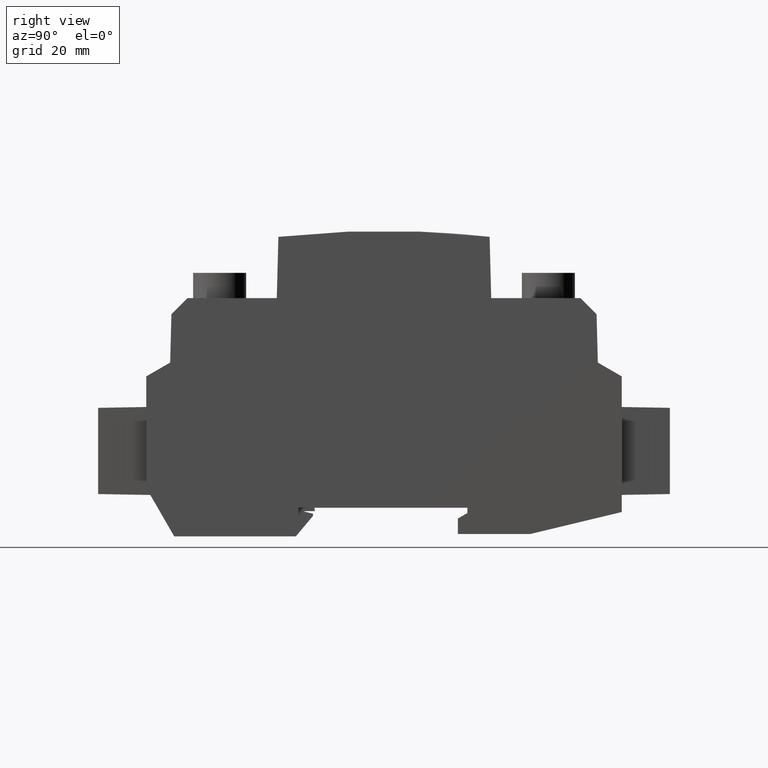
[diagram: clean part render]
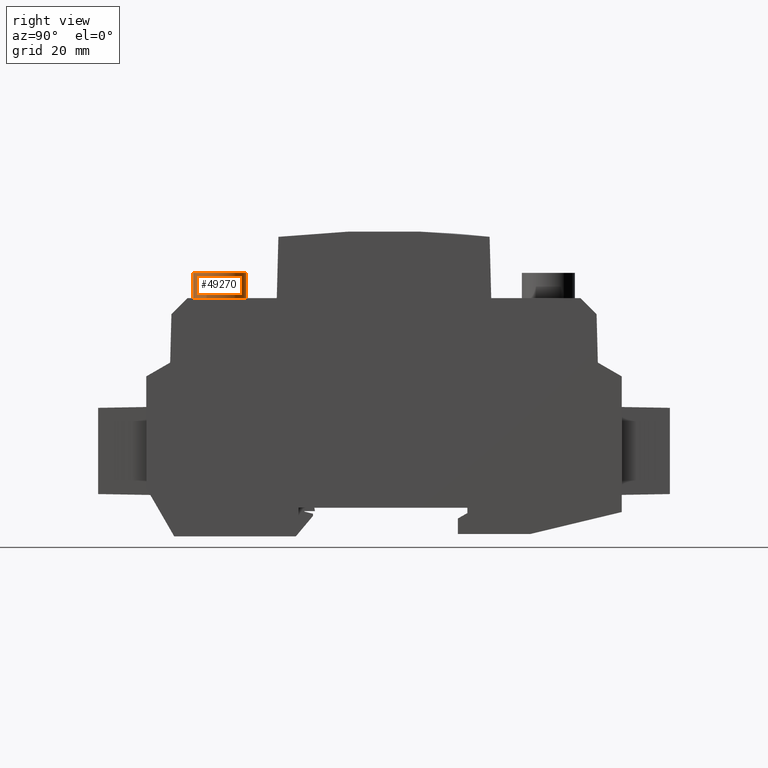
[diagram: same view with one face highlighted and labeled with its STEP entity id]
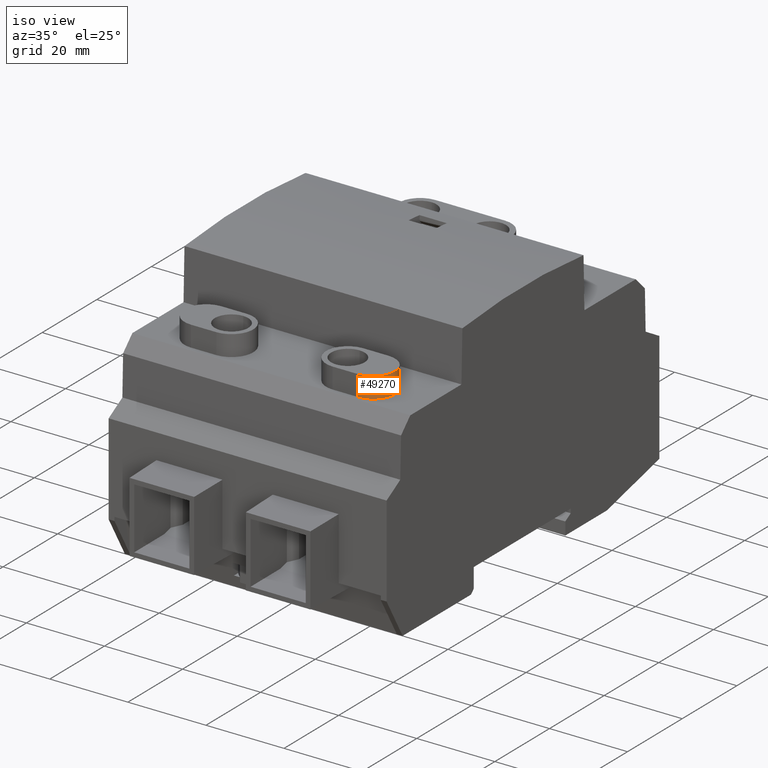
[diagram: same view with one face highlighted and labeled with its STEP entity id]
A machine part, right view. The second image highlights one B-rep face of the part: STEP entity #49270.
A second angle (iso view) of the same face is appended — the face is thin or edge-on in the first view.
In plain terms, the highlighted cylindrical surface (edge-blend (fillet) strip) has radius 5.569 mm, axis along (-0, 0, 1).
Its self-contained STEP definition (entity closure, byte-faithful):
#45460=CARTESIAN_POINT('',(195.339831138166,219.667615730764,
23.1007723124601));
#45470=VERTEX_POINT('',#45460);
#45500=CARTESIAN_POINT('',(195.339831138166,219.667615730764,
23.1007723124601));
#45510=DIRECTION('',(6.75275787025264E-14,-1.,4.17830355895164E-29));
#45520=VECTOR('',#45510,1.);
#45530=LINE('',#45500,#45520);
#45540=CARTESIAN_POINT('',(195.339831138167,214.36761573099,
23.1007723124601));
#45550=VERTEX_POINT('',#45540);
#45560=EDGE_CURVE('',#45470,#45550,#45530,.T.);
#48950=CARTESIAN_POINT('',(189.770818390172,219.667615730764,
23.1007723124601));
#48960=DIRECTION('',(-6.75275787025264E-14,1.,-4.17830355895164E-29));
#48970=DIRECTION('',(-1.,-6.75275787025264E-14,-1.22464679914735E-16));
#48980=AXIS2_PLACEMENT_3D('',#48950,#48960,#48970);
#48990=CYLINDRICAL_SURFACE('',#48980,5.56901274799509);
#49000=ORIENTED_EDGE('',*,*,#45560,.T.);
#49010=CARTESIAN_POINT('',(189.770818390172,219.667615730764,
23.1007723124601));
#49020=DIRECTION('',(-6.75275787025264E-14,1.,-4.17830355895164E-29));
#49030=DIRECTION('',(-1.,-6.75275787025264E-14,-1.22464679914735E-16));
#49040=AXIS2_PLACEMENT_3D('',#49010,#49020,#49030);
#49050=CIRCLE('',#49040,5.56901274799509);
#49060=CARTESIAN_POINT('',(184.201805642177,219.667615730763,
23.1007723124601));
#49070=VERTEX_POINT('',#49060);
#49080=EDGE_CURVE('',#45470,#49070,#49050,.T.);
#49090=ORIENTED_EDGE('',*,*,#49080,.F.);
#49100=CARTESIAN_POINT('',(184.201805642177,219.667615730763,
23.1007723124601));
#49110=DIRECTION('',(6.75275787025264E-14,-1.,4.17830355895164E-29));
#49120=VECTOR('',#49110,1.);
#49130=LINE('',#49100,#49120);
#49140=CARTESIAN_POINT('',(184.201805642177,214.367615731017,
23.1007723124601));
#49150=VERTEX_POINT('',#49140);
#49160=EDGE_CURVE('',#49070,#49150,#49130,.T.);
#49170=ORIENTED_EDGE('',*,*,#49160,.F.);
#49180=CARTESIAN_POINT('',(189.770818390172,214.367615731017,
23.1007723124601));
#49190=DIRECTION('',(-6.75275787025264E-14,1.,-4.17830355895164E-29));
#49200=DIRECTION('',(-1.,-6.75275787025264E-14,-1.22464679914735E-16));
#49210=AXIS2_PLACEMENT_3D('',#49180,#49190,#49200);
#49220=CIRCLE('',#49210,5.56901274799509);
#49230=EDGE_CURVE('',#45550,#49150,#49220,.T.);
#49240=ORIENTED_EDGE('',*,*,#49230,.T.);
#49250=EDGE_LOOP('',(#49240,#49170,#49090,#49000));
#49260=FACE_OUTER_BOUND('',#49250,.T.);
#49270=ADVANCED_FACE('',(#49260),#48990,.T.);